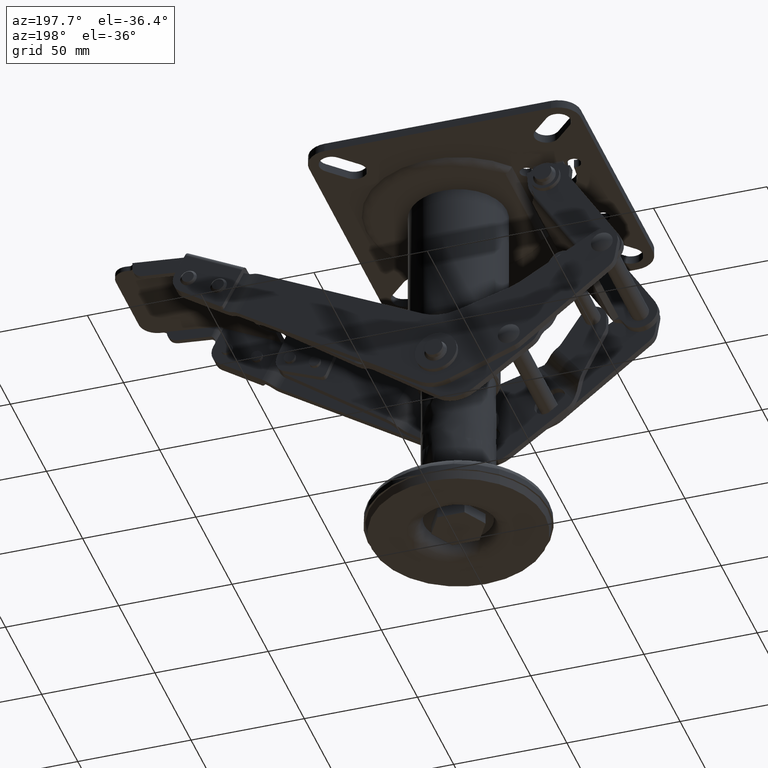
[diagram: clean part render]
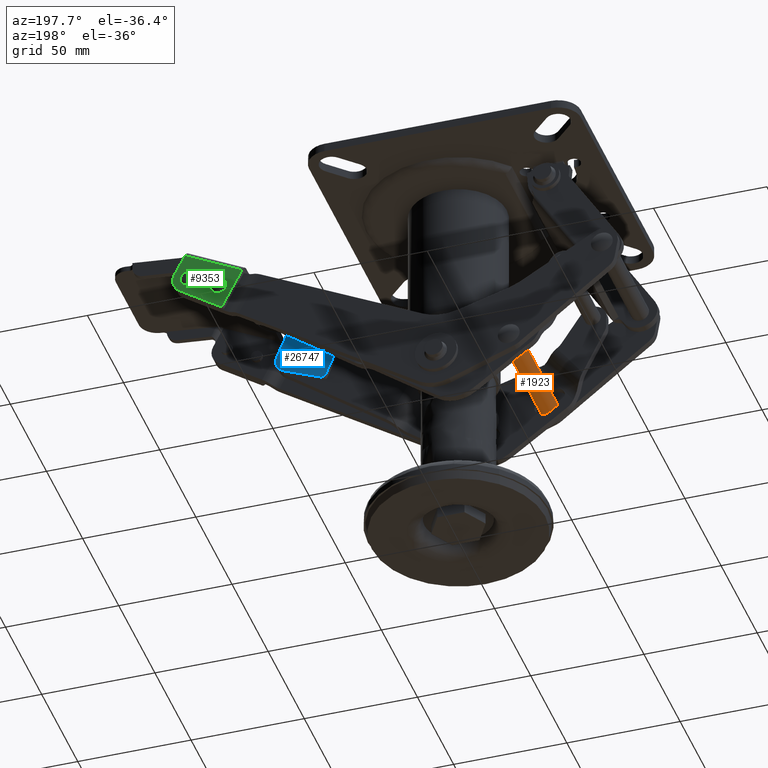
[diagram: same view with three faces highlighted in distinct colors, each labeled with its STEP entity id]
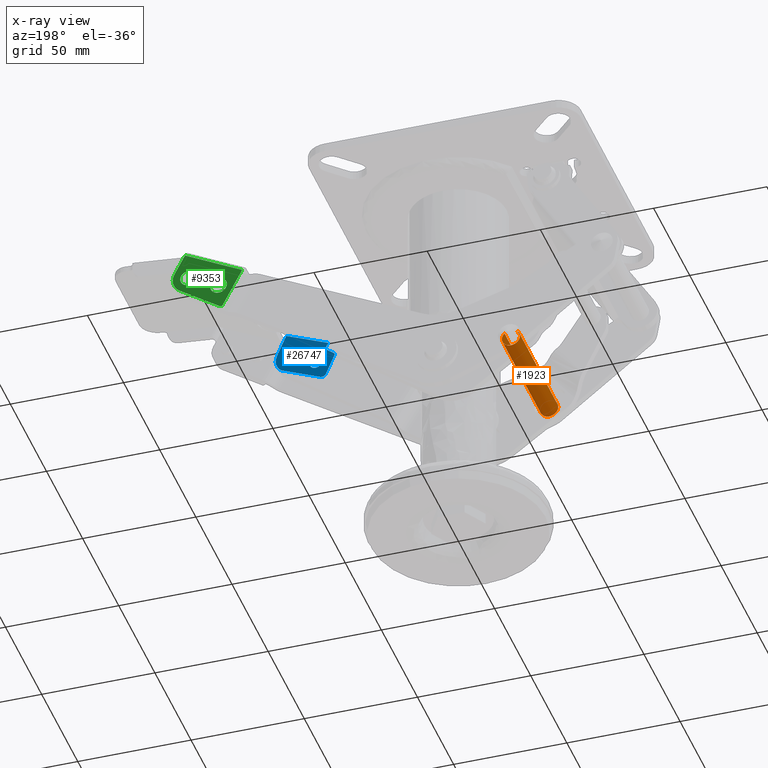
[diagram: x-ray of the same camera — body ghosted, the three highlighted faces saturated]
A machine part, auxiliary view with three faces highlighted in distinct colors.
The next image is the same camera in x-ray (body ghosted, the three faces saturated) — at least one of them is partly hidden behind the body in this view.
Their STEP definitions:

[orange] entity #1923 — the highlighted face is a freeform B-spline surface patch.
#1791=CARTESIAN_POINT('',(-28.766205372946612,-27.824999999999999,-91.208846770572947));
#1792=CARTESIAN_POINT('',(-25.962568315747539,-27.825000000000006,-94.061848567189315));
#1793=CARTESIAN_POINT('',(-28.815570112363929,-27.824999999999999,-96.865485624388398));
#1794=CARTESIAN_POINT('',(-31.668571908980315,-27.825000000000006,-99.669122681587467));
#1795=CARTESIAN_POINT('',(-34.472208966179387,-27.824999999999999,-96.816120884971085));
#1796=CARTESIAN_POINT('',(-37.275846023378456,-27.825000000000006,-93.963119088354702));
#1797=CARTESIAN_POINT('',(-34.422844226762066,-27.824999999999999,-91.159482031155633));
#1798=CARTESIAN_POINT('',(-28.766205372946612,27.858125000000001,-91.208846770572947));
#1799=CARTESIAN_POINT('',(-25.962568315747539,27.858125000000001,-94.061848567189315));
#1800=CARTESIAN_POINT('',(-28.815570112363929,27.858125000000001,-96.865485624388398));
#1801=CARTESIAN_POINT('',(-31.668571908980315,27.858125000000001,-99.669122681587467));
#1802=CARTESIAN_POINT('',(-34.472208966179387,27.858125000000001,-96.816120884971085));
#1803=CARTESIAN_POINT('',(-37.275846023378456,27.858125000000001,-93.963119088354702));
#1804=CARTESIAN_POINT('',(-34.422844226762066,27.858125000000001,-91.159482031155633));
#1812=(BOUNDED_SURFACE()B_SPLINE_SURFACE(2,1,((#1791,#1798),(#1792,#1799),(#1793,#1800),(#1794,#1801),(#1795,#1802),(#1796,#1803),(#1797,#1804)),.UNSPECIFIED.,.F.,.F.,.U.)B_SPLINE_SURFACE_WITH_KNOTS((3,2,2,3),(2,2),(0.0,6.627416997968759,13.254833995937521,19.882250993906279),(0.0,55.683125000000011),.UNSPECIFIED.)GEOMETRIC_REPRESENTATION_ITEM()RATIONAL_B_SPLINE_SURFACE(((1.0,1.0),(0.707106781186548,0.707106781186548),(1.0,1.0),(0.707106781186548,0.707106781186548),(1.0,1.0),(0.707106781186548,0.707106781186548),(1.0,1.0)))REPRESENTATION_ITEM('')SURFACE());
#1813=CARTESIAN_POINT('',(-27.619207169565279,26.500000000000000,-94.012479553874030));
#1814=VERTEX_POINT('',#1813);
#1815=CARTESIAN_POINT('',(-28.766204818361320,26.499999999996700,-91.208845810743327));
#1816=VERTEX_POINT('',#1815);
#1817=CARTESIAN_POINT('',(-27.619207169565279,26.500000000000000,-94.012479553874030));
#1818=CARTESIAN_POINT('',(-27.618553895807931,26.499999999999371,-93.462241561444216));
#1819=CARTESIAN_POINT('',(-27.836487233147491,26.499999999998071,-92.427321464509745));
#1820=CARTESIAN_POINT('',(-28.425641255838158,26.499999999997218,-91.554831510859870));
#1821=CARTESIAN_POINT('',(-28.766204818361320,26.499999999996700,-91.208845810743327));
#1822=B_SPLINE_CURVE_WITH_KNOTS('',3,(#1817,#1818,#1819,#1820,#1821),.UNSPECIFIED.,.F.,.U.,(4,1,4),(0.000000094677469,1.650442194562455,3.106758741136908),.UNSPECIFIED.);
#1823=EDGE_CURVE('',#1814,#1816,#1822,.T.);
#1824=ORIENTED_EDGE('',*,*,#1823,.T.);
#1825=CARTESIAN_POINT('',(-28.766206347659629,-26.500000000000000,-91.208847302878070));
#1826=VERTEX_POINT('',#1825);
#1827=CARTESIAN_POINT('',(-28.766206347659629,-26.500000000000000,-91.208847302878070));
#1828=CARTESIAN_POINT('',(-28.766204818361320,26.499999999996700,-91.208845810743327));
#1829=QUASI_UNIFORM_CURVE('',1,(#1827,#1828),.UNSPECIFIED.,.F.,.U.);
#1830=EDGE_CURVE('',#1826,#1816,#1829,.T.);
#1831=ORIENTED_EDGE('',*,*,#1830,.F.);
#1832=CARTESIAN_POINT('',(-27.619207169565762,-26.500000000000000,-94.012488101669973));
#1833=VERTEX_POINT('',#1832);
#1834=CARTESIAN_POINT('',(-28.766206347659629,-26.500000000000000,-91.208847302878070));
#1835=CARTESIAN_POINT('',(-28.425625737050911,-26.500000000000039,-91.554831019105961));
#1836=CARTESIAN_POINT('',(-27.836564631500028,-26.499999999999901,-92.427347838237296));
#1837=CARTESIAN_POINT('',(-27.618484889424590,-26.500000000000050,-93.462233009890824));
#1838=CARTESIAN_POINT('',(-27.619207169565762,-26.500000000000000,-94.012488101669973));
#1839=B_SPLINE_CURVE_WITH_KNOTS('',3,(#1834,#1835,#1836,#1837,#1838),.UNSPECIFIED.,.F.,.U.,(4,1,4),(0.000000094678687,1.456320263138075,3.106766467448271),.UNSPECIFIED.);
#1840=EDGE_CURVE('',#1826,#1833,#1839,.T.);
#1841=ORIENTED_EDGE('',*,*,#1840,.T.);
#1842=CARTESIAN_POINT('',(-31.619207169563001,-26.500000000000000,-98.012483827771533));
#1843=VERTEX_POINT('',#1842);
#1844=CARTESIAN_POINT('',(-27.619207169565762,-26.500000000000000,-94.012488101669973));
#1845=CARTESIAN_POINT('',(-27.619127664990220,-26.499999999999979,-94.372449042138854));
#1846=CARTESIAN_POINT('',(-27.730187478268260,-26.500000000000011,-95.190628588056583));
#1847=CARTESIAN_POINT('',(-28.255464844478361,-26.500000000000000,-96.301415322119880));
#1848=CARTESIAN_POINT('',(-29.145219870700970,-26.500000000000039,-97.235835978917606));
#1849=CARTESIAN_POINT('',(-30.277655943040681,-26.499999999999691,-97.859046522410111));
#1850=CARTESIAN_POINT('',(-31.161017466523909,-26.500000000000220,-98.012783762733349));
#1851=CARTESIAN_POINT('',(-31.619207169563001,-26.500000000000000,-98.012483827771533));
#1852=B_SPLINE_CURVE_WITH_KNOTS('',3,(#1844,#1845,#1846,#1847,#1848,#1849,#1850,#1851),.UNSPECIFIED.,.F.,.U.,(4,1,1,1,1,4),(0.000000418352396,1.079919872330230,2.454485553052767,3.632546585935487,4.908862546651442,6.283340568467245),.UNSPECIFIED.);
#1853=EDGE_CURVE('',#1833,#1843,#1852,.T.);
#1854=ORIENTED_EDGE('',*,*,#1853,.T.);
#1855=CARTESIAN_POINT('',(-35.619207169560227,-26.500000000000000,-94.012479553874030));
#1856=VERTEX_POINT('',#1855);
#1857=CARTESIAN_POINT('',(-31.619207169563001,-26.500000000000000,-98.012483827771533));
#1858=CARTESIAN_POINT('',(-31.979178706468279,-26.500000000000011,-98.012588500201659));
#1859=CARTESIAN_POINT('',(-32.731835482924510,-26.500000000000028,-97.910271437930447));
#1860=CARTESIAN_POINT('',(-33.729826027571363,-26.499999999999929,-97.467935078459561));
#1861=CARTESIAN_POINT('',(-34.545430605614882,-26.500000000000160,-96.798495545239462));
#1862=CARTESIAN_POINT('',(-35.134689577142893,-26.499999999999929,-96.004000543368093));
#1863=CARTESIAN_POINT('',(-35.525796499622011,-26.499999999999961,-95.059616326568701));
#1864=CARTESIAN_POINT('',(-35.619335533709489,-26.500000000000011,-94.372461469910206));
#1865=CARTESIAN_POINT('',(-35.619207169560227,-26.500000000000000,-94.012479553874030));
#1866=B_SPLINE_CURVE_WITH_KNOTS('',3,(#1857,#1858,#1859,#1860,#1861,#1862,#1863,#1864,#1865),.UNSPECIFIED.,.F.,.U.,(4,1,1,1,1,1,4),(0.000000412508236,1.079920695181849,2.258091253484733,3.239792636255949,4.221593183821381,5.203425104538209,6.283345386266682),.UNSPECIFIED.);
#1867=EDGE_CURVE('',#1843,#1856,#1866,.T.);
#1868=ORIENTED_EDGE('',*,*,#1867,.T.);
#1869=CARTESIAN_POINT('',(-34.422845183937532,-26.500000000000000,-91.159481473962387));
#1870=VERTEX_POINT('',#1869);
#1871=CARTESIAN_POINT('',(-35.619207169560227,-26.500000000000000,-94.012479553874030));
#1872=CARTESIAN_POINT('',(-35.619644264395092,-26.500000000000060,-93.516087100579796));
#1873=CARTESIAN_POINT('',(-35.419497067566347,-26.499999999999950,-92.457604319470619));
#1874=CARTESIAN_POINT('',(-34.824629748915427,-26.500000000000039,-91.553313078742633));
#1875=CARTESIAN_POINT('',(-34.422845183937532,-26.500000000000000,-91.159481473962387));
#1876=B_SPLINE_CURVE_WITH_KNOTS('',3,(#1871,#1872,#1873,#1874,#1875),.UNSPECIFIED.,.F.,.U.,(4,1,4),(0.000000105719107,1.489045353038137,3.176576587440371),.UNSPECIFIED.);
#1877=EDGE_CURVE('',#1856,#1870,#1876,.T.);
#1878=ORIENTED_EDGE('',*,*,#1877,.T.);
#1879=CARTESIAN_POINT('',(-34.422843697052073,26.500000000003329,-91.159483008418476));
#1880=VERTEX_POINT('',#1879);
#1881=CARTESIAN_POINT('',(-34.422845183937532,-26.500000000000000,-91.159481473962387));
#1882=CARTESIAN_POINT('',(-34.422843697052073,26.500000000003329,-91.159483008418476));
#1883=QUASI_UNIFORM_CURVE('',1,(#1881,#1882),.UNSPECIFIED.,.F.,.U.);
#1884=EDGE_CURVE('',#1870,#1880,#1883,.T.);
#1885=ORIENTED_EDGE('',*,*,#1884,.T.);
#1886=CARTESIAN_POINT('',(-35.619207169560717,26.500000000000000,-94.012488101669959));
#1887=VERTEX_POINT('',#1886);
#1888=CARTESIAN_POINT('',(-34.422843697052073,26.500000000003329,-91.159483008418476));
#1889=CARTESIAN_POINT('',(-34.777205283325827,26.500000000002931,-91.507096668136853));
#1890=CARTESIAN_POINT('',(-35.391881014164959,26.500000000001929,-92.391755639416687));
#1891=CARTESIAN_POINT('',(-35.619918691597057,26.500000000000639,-93.449874733975520));
#1892=CARTESIAN_POINT('',(-35.619207169560717,26.500000000000000,-94.012488101669959));
#1893=B_SPLINE_CURVE_WITH_KNOTS('',3,(#1888,#1889,#1890,#1891,#1892),.UNSPECIFIED.,.F.,.U.,(4,1,4),(0.000000105725228,1.489048955607485,3.176584272505725),.UNSPECIFIED.);
#1894=EDGE_CURVE('',#1880,#1887,#1893,.T.);
#1895=ORIENTED_EDGE('',*,*,#1894,.T.);
#1896=CARTESIAN_POINT('',(-31.619207169563001,26.500000000000000,-98.012483827772016));
#1897=VERTEX_POINT('',#1896);
#1898=CARTESIAN_POINT('',(-35.619207169560717,26.500000000000000,-94.012488101669959));
#1899=CARTESIAN_POINT('',(-35.619673571145682,26.500000000000021,-94.536168920295694));
#1900=CARTESIAN_POINT('',(-35.456246966689463,26.499999999999961,-95.353853043218152));
#1901=CARTESIAN_POINT('',(-34.836944997107743,26.500000000000000,-96.478902512835731));
#1902=CARTESIAN_POINT('',(-34.085673894950972,26.500000000000028,-97.230302335226554));
#1903=CARTESIAN_POINT('',(-32.960534901160962,26.499999999999929,-97.849387732409468));
#1904=CARTESIAN_POINT('',(-32.142917724841219,26.500000000000089,-98.013089443900512));
#1905=CARTESIAN_POINT('',(-31.619207169563001,26.500000000000000,-98.012483827772016));
#1906=B_SPLINE_CURVE_WITH_KNOTS('',3,(#1898,#1899,#1900,#1901,#1902,#1903,#1904,#1905),.UNSPECIFIED.,.F.,.U.,(4,1,1,1,1,4),(0.000000418345246,1.570835456222282,2.454485553047249,3.828855432455002,4.712505528723318,6.283340568468194),.UNSPECIFIED.);
#1907=EDGE_CURVE('',#1887,#1897,#1906,.T.);
#1908=ORIENTED_EDGE('',*,*,#1907,.T.);
#1909=CARTESIAN_POINT('',(-31.619207169563001,26.500000000000000,-98.012483827772016));
#1910=CARTESIAN_POINT('',(-31.095528051398450,26.500000000000011,-98.013021169009761));
#1911=CARTESIAN_POINT('',(-30.212374321204660,26.499999999999989,-97.836434112235011));
#1912=CARTESIAN_POINT('',(-29.213849034547621,26.500000000000039,-97.254269054642791));
#1913=CARTESIAN_POINT('',(-28.570891145977662,26.499999999999989,-96.642027367237404));
#1914=CARTESIAN_POINT('',(-28.040546564709189,26.500000000000000,-95.889327739750286));
#1915=CARTESIAN_POINT('',(-27.695342833752839,26.500000000000021,-94.994261006047239));
#1916=CARTESIAN_POINT('',(-27.619176434749338,26.499999999999950,-94.306993299644361));
#1917=CARTESIAN_POINT('',(-27.619207169565279,26.500000000000000,-94.012479553874030));
#1918=B_SPLINE_CURVE_WITH_KNOTS('',3,(#1909,#1910,#1911,#1912,#1913,#1914,#1915,#1916,#1917),.UNSPECIFIED.,.F.,.U.,(4,1,1,1,1,1,4),(0.000000412501004,1.570836655595453,2.650796431459031,3.436131191662016,4.221593183820276,5.399763741403953,6.283345386267448),.UNSPECIFIED.);
#1919=EDGE_CURVE('',#1897,#1814,#1918,.T.);
#1920=ORIENTED_EDGE('',*,*,#1919,.T.);
#1921=EDGE_LOOP('',(#1824,#1831,#1841,#1854,#1868,#1878,#1885,#1895,#1908,#1920));
#1922=FACE_OUTER_BOUND('',#1921,.T.);
#1923=ADVANCED_FACE('',(#1922),#1812,.T.);

[blue] entity #26747 — the highlighted face is a freeform B-spline surface patch.
#22961=CARTESIAN_POINT('',(90.808191698337822,-17.074999999999999,-34.407570332988143));
#22962=VERTEX_POINT('',#22961);
#22968=CARTESIAN_POINT('',(92.529076881266207,-17.074999999999999,-33.721005581530846));
#22969=VERTEX_POINT('',#22968);
#22970=CARTESIAN_POINT('',(92.529076881266207,-17.074999999999999,-33.721005581530846));
#22971=CARTESIAN_POINT('',(92.192924058765243,-17.075000000000010,-33.720652489476471));
#22972=CARTESIAN_POINT('',(91.560582682011272,-17.074999999999989,-33.850639583666897));
#22973=CARTESIAN_POINT('',(91.023190630688163,-17.074999999999999,-34.203239864858453));
#22974=CARTESIAN_POINT('',(90.808191698337822,-17.074999999999999,-34.407570332988143));
#22975=B_SPLINE_CURVE_WITH_KNOTS('',3,(#22970,#22971,#22972,#22973,#22974),.UNSPECIFIED.,.F.,.U.,(4,1,4),(0.000000118063811,1.008324444131709,1.898089109779029),.UNSPECIFIED.);
#22976=EDGE_CURVE('',#22969,#22962,#22975,.T.);
#22978=CARTESIAN_POINT('',(95.029076881260295,-17.074999999999999,-36.221000144864533));
#22979=VERTEX_POINT('',#22978);
#22980=CARTESIAN_POINT('',(95.029076881260295,-17.074999999999999,-36.221000144864533));
#22981=CARTESIAN_POINT('',(95.029732566927208,-17.074999999999989,-35.832282468399072));
#22982=CARTESIAN_POINT('',(94.868442915789643,-17.075000000000038,-35.157958437757628));
#22983=CARTESIAN_POINT('',(94.349024414892398,-17.074999999999960,-34.457830489202777));
#22984=CARTESIAN_POINT('',(93.824834661534979,-17.075000000000060,-34.059200780758559));
#22985=CARTESIAN_POINT('',(93.244862249558054,-17.075000000000081,-33.793495458863369));
#22986=CARTESIAN_POINT('',(92.794981042916547,-17.074999999999761,-33.720863264498107));
#22987=CARTESIAN_POINT('',(92.529076881266207,-17.074999999999999,-33.721005581530846));
#22988=B_SPLINE_CURVE_WITH_KNOTS('',3,(#22980,#22981,#22982,#22983,#22984,#22985,#22986,#22987),.UNSPECIFIED.,.F.,.U.,(4,1,1,1,1,4),(0.000000547506545,1.165862441027591,2.024823918252311,2.577121338168464,3.129405312654715,3.927086296641714),.UNSPECIFIED.);
#22989=EDGE_CURVE('',#22979,#22969,#22988,.T.);
#22991=CARTESIAN_POINT('',(92.529076881266207,-17.074999999999999,-38.721005581530846));
#22992=VERTEX_POINT('',#22991);
#22993=CARTESIAN_POINT('',(92.529076881266207,-17.074999999999999,-38.721005581530846));
#22994=CARTESIAN_POINT('',(92.876851369055800,-17.074999999999989,-38.721462663420510));
#22995=CARTESIAN_POINT('',(93.469639567116786,-17.074999999999999,-38.595168971709533));
#22996=CARTESIAN_POINT('',(94.115869357619744,-17.074999999999982,-38.185811908951429));
#22997=CARTESIAN_POINT('',(94.569390192391850,-17.075000000000038,-37.709489493403673));
#22998=CARTESIAN_POINT('',(94.926128952335972,-17.074999999999910,-37.079908680830989));
#22999=CARTESIAN_POINT('',(95.029327315463718,-17.075000000000170,-36.527819454481872));
#23000=CARTESIAN_POINT('',(95.029076881260295,-17.074999999999999,-36.221000144864533));
#23001=B_SPLINE_CURVE_WITH_KNOTS('',3,(#22993,#22994,#22995,#22996,#22997,#22998,#22999,#23000),.UNSPECIFIED.,.F.,.U.,(4,1,1,1,1,4),(0.000000540087488,1.043139432707628,1.779489830702981,2.270314226632276,3.006685379967978,3.927092425184804),.UNSPECIFIED.);
#23002=EDGE_CURVE('',#22992,#22979,#23001,.T.);
#23004=CARTESIAN_POINT('',(90.620186969218111,-17.074999999999999,-37.835361801571302));
#23005=VERTEX_POINT('',#23004);
#23006=CARTESIAN_POINT('',(90.620186969218111,-17.074999999999999,-37.835361801571302));
#23007=CARTESIAN_POINT('',(90.780817553268392,-17.074999999999999,-38.025484414928563));
#23008=CARTESIAN_POINT('',(91.107893237893421,-17.075000000000021,-38.311763682157412));
#23009=CARTESIAN_POINT('',(91.759967552624232,-17.074999999999960,-38.636147929609827));
#23010=CARTESIAN_POINT('',(92.234913201803153,-17.075000000000038,-38.721223397864179));
#23011=CARTESIAN_POINT('',(92.529076881266207,-17.074999999999999,-38.721005581530846));
#23012=B_SPLINE_CURVE_WITH_KNOTS('',3,(#23006,#23007,#23008,#23009,#23010,#23011),.UNSPECIFIED.,.F.,.U.,(4,1,1,4),(0.000000181234518,0.746668956718978,1.289659142569406,2.172070991125586),.UNSPECIFIED.);
#23013=EDGE_CURVE('',#23005,#22992,#23012,.T.);
#23048=CARTESIAN_POINT('',(90.029076881272090,-17.074999999999999,-36.221011018197160));
#23049=VERTEX_POINT('',#23048);
#23050=CARTESIAN_POINT('',(90.029076881272090,-17.074999999999999,-36.221011018197160));
#23051=CARTESIAN_POINT('',(90.028466416270817,-17.075000000000010,-36.586757695082191));
#23052=CARTESIAN_POINT('',(90.159887739956190,-17.074999999999982,-37.171170813855127));
#23053=CARTESIAN_POINT('',(90.478488223417344,-17.075000000000010,-37.667889540069289));
#23054=CARTESIAN_POINT('',(90.620186969218111,-17.074999999999999,-37.835361801571302));
#23055=B_SPLINE_CURVE_WITH_KNOTS('',3,(#23050,#23051,#23052,#23053,#23054),.UNSPECIFIED.,.F.,.U.,(4,1,4),(0.000000100657828,1.096871113609448,1.755017316410391),.UNSPECIFIED.);
#23056=EDGE_CURVE('',#23049,#23005,#23055,.T.);
#23058=CARTESIAN_POINT('',(90.808191698337822,-17.074999999999999,-34.407570332988143));
#23059=CARTESIAN_POINT('',(90.547188233274952,-17.075000000000010,-34.654585253080519));
#23060=CARTESIAN_POINT('',(90.159520808124370,-17.074999999999971,-35.227858105586989));
#23061=CARTESIAN_POINT('',(90.028778239098543,-17.075000000000092,-35.903934261335237));
#23062=CARTESIAN_POINT('',(90.029076881272090,-17.074999999999999,-36.221011018197160));
#23063=B_SPLINE_CURVE_WITH_KNOTS('',3,(#23058,#23059,#23060,#23061,#23062),.UNSPECIFIED.,.F.,.U.,(4,1,4),(0.000000164773196,1.077865700944058,2.029004949508118),.UNSPECIFIED.);
#23064=EDGE_CURVE('',#22962,#23049,#23063,.T.);
#23348=CARTESIAN_POINT('',(79.703649451615121,-17.074999999999999,-38.956255697118713));
#23349=VERTEX_POINT('',#23348);
#23355=CARTESIAN_POINT('',(81.424534634543491,-17.074999999999999,-38.269690945661402));
#23356=VERTEX_POINT('',#23355);
#23357=CARTESIAN_POINT('',(81.424534634543491,-17.074999999999999,-38.269690945661402));
#23358=CARTESIAN_POINT('',(81.127921689471648,-17.075000000000021,-38.269452116295433));
#23359=CARTESIAN_POINT('',(80.495439089383439,-17.074999999999989,-38.383705195647849));
#23360=CARTESIAN_POINT('',(79.947204887731630,-17.075000000000021,-38.724538122134277));
#23361=CARTESIAN_POINT('',(79.703649451615121,-17.074999999999999,-38.956255697118713));
#23362=B_SPLINE_CURVE_WITH_KNOTS('',3,(#23357,#23358,#23359,#23360,#23361),.UNSPECIFIED.,.F.,.U.,(4,1,4),(0.000000118063662,0.889764784027688,1.898089109779043),.UNSPECIFIED.);
#23363=EDGE_CURVE('',#23356,#23349,#23362,.T.);
#23365=CARTESIAN_POINT('',(83.924534634537579,-17.074999999999999,-40.769685508995082));
#23366=VERTEX_POINT('',#23365);
#23367=CARTESIAN_POINT('',(83.924534634537579,-17.074999999999999,-40.769685508995082));
#23368=CARTESIAN_POINT('',(83.925000781352963,-17.074999999999989,-40.421899214147032));
#23369=CARTESIAN_POINT('',(83.798665878550338,-17.075000000000010,-39.829168473813482));
#23370=CARTESIAN_POINT('',(83.334108045228163,-17.075000000000038,-39.095457115022967));
#23371=CARTESIAN_POINT('',(82.795174590249658,-17.074999999999950,-38.642060306479181));
#23372=CARTESIAN_POINT('',(82.140316454433687,-17.075000000000170,-38.342182599635770));
#23373=CARTESIAN_POINT('',(81.690436066942539,-17.074999999999680,-38.269553683706349));
#23374=CARTESIAN_POINT('',(81.424534634543491,-17.074999999999999,-38.269690945661402));
#23375=B_SPLINE_CURVE_WITH_KNOTS('',3,(#23367,#23368,#23369,#23370,#23371,#23372,#23373,#23374),.UNSPECIFIED.,.F.,.U.,(4,1,1,1,1,4),(0.000000547509789,1.043137811665683,1.779487070288638,2.577121338169154,3.129405312655048,3.927086296641721),.UNSPECIFIED.);
#23376=EDGE_CURVE('',#23366,#23356,#23375,.T.);
#23378=CARTESIAN_POINT('',(81.424534634543491,-17.074999999999999,-43.269690945661402));
#23379=VERTEX_POINT('',#23378);
#23380=CARTESIAN_POINT('',(81.424534634543491,-17.074999999999999,-43.269690945661402));
#23381=CARTESIAN_POINT('',(81.813275177046123,-17.074999999999982,-43.270354882129602));
#23382=CARTESIAN_POINT('',(82.446695766394470,-17.075000000000092,-43.118781368579548));
#23383=CARTESIAN_POINT('',(83.122765127944191,-17.074999999999889,-42.642324219568152));
#23384=CARTESIAN_POINT('',(83.520188967508844,-17.075000000000060,-42.169928942517522));
#23385=CARTESIAN_POINT('',(83.832972307868999,-17.074999999999960,-41.567183955634569));
#23386=CARTESIAN_POINT('',(83.924822125459201,-17.075000000000021,-41.076527390790979));
#23387=CARTESIAN_POINT('',(83.924534634537579,-17.074999999999999,-40.769685508995082));
#23388=B_SPLINE_CURVE_WITH_KNOTS('',3,(#23380,#23381,#23382,#23383,#23384,#23385,#23386,#23387),.UNSPECIFIED.,.F.,.U.,(4,1,1,1,1,4),(0.000000540096302,1.165864255411844,1.902265884885908,2.454424079270073,3.006685379969956,3.927092425184628),.UNSPECIFIED.);
#23389=EDGE_CURVE('',#23379,#23366,#23388,.T.);
#23391=CARTESIAN_POINT('',(79.515644722495395,-17.074999999999999,-42.384047165701837));
#23392=VERTEX_POINT('',#23391);
#23393=CARTESIAN_POINT('',(79.515644722495395,-17.074999999999999,-42.384047165701837));
#23394=CARTESIAN_POINT('',(79.705431200162153,-17.074999999999999,-42.608802084961653));
#23395=CARTESIAN_POINT('',(80.077089719808640,-17.074999999999999,-42.916490185630948));
#23396=CARTESIAN_POINT('',(80.745835564262165,-17.074999999999999,-43.204964172909143));
#23397=CARTESIAN_POINT('',(81.175643103275078,-17.075000000000021,-43.269787218865993));
#23398=CARTESIAN_POINT('',(81.424534634543491,-17.074999999999999,-43.269690945661402));
#23399=B_SPLINE_CURVE_WITH_KNOTS('',3,(#23393,#23394,#23395,#23396,#23397,#23398),.UNSPECIFIED.,.F.,.U.,(4,1,1,4),(0.000000181234667,0.882412030100125,1.425402216062774,2.172070991125592),.UNSPECIFIED.);
#23400=EDGE_CURVE('',#23392,#23379,#23399,.T.);
#23435=CARTESIAN_POINT('',(78.924534634549403,-17.074999999999999,-40.769696382327709));
#23436=VERTEX_POINT('',#23435);
#23437=CARTESIAN_POINT('',(78.924534634549403,-17.074999999999999,-40.769696382327709));
#23438=CARTESIAN_POINT('',(78.924155438127698,-17.074999999999999,-41.098818848993702));
#23439=CARTESIAN_POINT('',(79.041866138804920,-17.075000000000021,-41.683462777727598));
#23440=CARTESIAN_POINT('',(79.350275183749531,-17.074999999999999,-42.188694222418484));
#23441=CARTESIAN_POINT('',(79.515644722495395,-17.074999999999999,-42.384047165701837));
#23442=B_SPLINE_CURVE_WITH_KNOTS('',3,(#23437,#23438,#23439,#23440,#23441),.UNSPECIFIED.,.F.,.U.,(4,1,4),(0.000000100659238,0.987184254108545,1.755017316410373),.UNSPECIFIED.);
#23443=EDGE_CURVE('',#23436,#23392,#23442,.T.);
#23445=CARTESIAN_POINT('',(79.703649451615121,-17.074999999999999,-38.956255697118713));
#23446=CARTESIAN_POINT('',(79.488886582106460,-17.074999999999999,-39.159819665646069));
#23447=CARTESIAN_POINT('',(79.082076501002334,-17.075000000000031,-39.713494670967833));
#23448=CARTESIAN_POINT('',(78.923915066536011,-17.074999999999999,-40.389162225597289));
#23449=CARTESIAN_POINT('',(78.924534634549403,-17.074999999999999,-40.769696382327709));
#23450=B_SPLINE_CURVE_WITH_KNOTS('',3,(#23445,#23446,#23447,#23448,#23449),.UNSPECIFIED.,.F.,.U.,(4,1,4),(0.000000164770793,0.887718262016958,2.029004949508138),.UNSPECIFIED.);
#23451=EDGE_CURVE('',#23349,#23436,#23450,.T.);
#23695=CARTESIAN_POINT('',(75.962954382950798,-17.074999999999999,-35.326228987866251));
#23696=VERTEX_POINT('',#23695);
#23697=CARTESIAN_POINT('',(76.609243049626897,-17.074999999999999,-32.971472534990603));
#23698=VERTEX_POINT('',#23697);
#23699=CARTESIAN_POINT('',(75.962954382950798,-17.074999999999999,-35.326228987866251));
#23700=CARTESIAN_POINT('',(76.247720516490276,-17.075000000000010,-35.112677364771983));
#23701=CARTESIAN_POINT('',(76.609990130004959,-17.074999999999989,-34.640793345958947));
#23702=CARTESIAN_POINT('',(76.809509746416580,-17.074999999999960,-33.776019279666173));
#23703=CARTESIAN_POINT('',(76.723800628455322,-17.075000000000092,-33.249876516813153));
#23704=CARTESIAN_POINT('',(76.609243049626897,-17.074999999999999,-32.971472534990603));
#23705=B_SPLINE_CURVE_WITH_KNOTS('',3,(#23699,#23700,#23701,#23702,#23703,#23704),.UNSPECIFIED.,.F.,.U.,(4,1,1,4),(0.000000264318612,1.067143648756178,1.723775436034048,2.626745113032931),.UNSPECIFIED.);
#23706=EDGE_CURVE('',#23696,#23698,#23705,.T.);
#26486=CARTESIAN_POINT('',(94.487977823076690,-17.074999999999999,-23.855645066696049));
#26487=VERTEX_POINT('',#26486);
#26493=CARTESIAN_POINT('',(75.980594611312242,-17.074999999999999,-31.436800199005930));
#26494=VERTEX_POINT('',#26493);
#26495=CARTESIAN_POINT('',(75.980594611312242,-17.074999999999999,-31.436800199005930));
#26496=CARTESIAN_POINT('',(94.487977823076690,-17.074999999999999,-23.855645066696049));
#26497=QUASI_UNIFORM_CURVE('',1,(#26495,#26496),.UNSPECIFIED.,.F.,.U.);
#26498=EDGE_CURVE('',#26494,#26487,#26497,.T.);
#26549=CARTESIAN_POINT('',(79.313250922320904,-17.074999999999999,-48.449332893897598));
#26550=VERTEX_POINT('',#26549);
#26551=CARTESIAN_POINT('',(76.704389321788895,-17.074999999999999,-47.356702512996002));
#26552=VERTEX_POINT('',#26551);
#26553=CARTESIAN_POINT('',(79.313250922320904,-17.074999999999999,-48.449332893897598));
#26554=CARTESIAN_POINT('',(79.116459742717197,-17.074999999999999,-48.530015126261112));
#26555=CARTESIAN_POINT('',(78.632206810029615,-17.074999999999999,-48.643130958358661));
#26556=CARTESIAN_POINT('',(77.953371274032705,-17.074999999999989,-48.548267053239400));
#26557=CARTESIAN_POINT('',(77.397581433248178,-17.075000000000038,-48.256770814779870));
#26558=CARTESIAN_POINT('',(76.983758045983649,-17.074999999999900,-47.878749381050461));
#26559=CARTESIAN_POINT('',(76.784907257549435,-17.075000000000092,-47.553595440338242));
#26560=CARTESIAN_POINT('',(76.704389321788895,-17.074999999999999,-47.356702512996002));
#26561=B_SPLINE_CURVE_WITH_KNOTS('',3,(#26553,#26554,#26555,#26556,#26557,#26558,#26559,#26560),.UNSPECIFIED.,.F.,.U.,(4,1,1,1,1,4),(0.000000559984340,0.638137288429887,1.472698475862378,2.012618570525781,2.503534760331381,3.141671488777148),.UNSPECIFIED.);
#26562=EDGE_CURVE('',#26550,#26552,#26561,.T.);
#26606=CARTESIAN_POINT('',(73.056834071846410,-17.074999999999999,-38.452126261895003));
#26607=VERTEX_POINT('',#26606);
#26608=CARTESIAN_POINT('',(73.379977397160900,-17.074999999999999,-37.274745574615402));
#26609=VERTEX_POINT('',#26608);
#26610=CARTESIAN_POINT('',(73.056834071846410,-17.074999999999999,-38.452126261895003));
#26611=CARTESIAN_POINT('',(72.988992302306698,-17.075000000000021,-38.287635454280753));
#26612=CARTESIAN_POINT('',(72.951770066780810,-17.074999999999960,-37.978179440542370));
#26613=CARTESIAN_POINT('',(73.095996988683950,-17.075000000000070,-37.556840625822971));
#26614=CARTESIAN_POINT('',(73.270657566122537,-17.074999999999928,-37.357029146747813));
#26615=CARTESIAN_POINT('',(73.379977397160900,-17.074999999999999,-37.274745574615402));
#26616=B_SPLINE_CURVE_WITH_KNOTS('',3,(#26610,#26611,#26612,#26613,#26614,#26615),.UNSPECIFIED.,.F.,.U.,(4,1,1,4),(0.000000563185980,0.533571916660774,0.902938231927132,1.313375216497672),.UNSPECIFIED.);
#26617=EDGE_CURVE('',#26607,#26609,#26616,.T.);
#26679=CARTESIAN_POINT('',(71.681220191802808,-17.074999999999999,-49.833964322595733));
#26680=CARTESIAN_POINT('',(100.330010754066810,-17.074999999999999,-49.833964322595733));
#26681=CARTESIAN_POINT('',(71.681220191802808,-17.074999999999999,-22.619759838178240));
#26682=CARTESIAN_POINT('',(100.330010754066810,-17.074999999999999,-22.619759838178240));
#26683=B_SPLINE_SURFACE_WITH_KNOTS('',1,1,((#26679,#26681),(#26680,#26682)),.UNSPECIFIED.,.F.,.F.,.U.,(2,2),(2,2),(0.0,28.648790562263969),(0.0,27.214204484417479),.UNSPECIFIED.);
#26684=CARTESIAN_POINT('',(75.980594611312242,-17.074999999999999,-31.436800199005930));
#26685=CARTESIAN_POINT('',(76.609243049626897,-17.074999999999999,-32.971472534990603));
#26686=QUASI_UNIFORM_CURVE('',1,(#26684,#26685),.UNSPECIFIED.,.F.,.U.);
#26687=EDGE_CURVE('',#26494,#23698,#26686,.T.);
#26688=ORIENTED_EDGE('',*,*,#26687,.F.);
#26689=ORIENTED_EDGE('',*,*,#26498,.T.);
#26690=CARTESIAN_POINT('',(98.530273713799303,-17.074999999999999,-33.723879958825052));
#26691=VERTEX_POINT('',#26690);
#26692=CARTESIAN_POINT('',(98.530273713799303,-17.074999999999999,-33.723879958825052));
#26693=CARTESIAN_POINT('',(94.487977823076690,-17.074999999999999,-23.855645066696049));
#26694=QUASI_UNIFORM_CURVE('',1,(#26692,#26693),.UNSPECIFIED.,.F.,.U.);
#26695=EDGE_CURVE('',#26691,#26487,#26694,.T.);
#26696=ORIENTED_EDGE('',*,*,#26695,.F.);
#26697=CARTESIAN_POINT('',(96.377290848255996,-17.074999999999999,-41.459440656254401));
#26698=VERTEX_POINT('',#26697);
#26699=CARTESIAN_POINT('',(96.377290848255996,-17.074999999999999,-41.459440656254401));
#26700=CARTESIAN_POINT('',(96.849655000784509,-17.074999999999999,-41.112617414903760));
#26701=CARTESIAN_POINT('',(97.732377328645427,-17.074999999999999,-40.258485246148460));
#26702=CARTESIAN_POINT('',(98.526265266691851,-17.075000000000049,-38.875728915116341));
#26703=CARTESIAN_POINT('',(98.916960498382295,-17.074999999999928,-37.576105908868151));
#26704=CARTESIAN_POINT('',(99.064632914818702,-17.075000000000031,-36.409344309695037));
#26705=CARTESIAN_POINT('',(98.983942074013243,-17.075000000000060,-35.097456249540592));
#26706=CARTESIAN_POINT('',(98.720848196907852,-17.074999999999971,-34.181649812631321));
#26707=CARTESIAN_POINT('',(98.530273713799303,-17.074999999999999,-33.723879958825052));
#26708=B_SPLINE_CURVE_WITH_KNOTS('',3,(#26699,#26700,#26701,#26702,#26703,#26704,#26705,#26706,#26707),.UNSPECIFIED.,.F.,.U.,(4,1,1,1,1,1,4),(0.000000205871785,1.758065295058938,3.651411250720962,4.733189110452541,5.815119020448874,7.167521742968448,8.655093773655507),.UNSPECIFIED.);
#26709=EDGE_CURVE('',#26698,#26691,#26708,.T.);
#26710=ORIENTED_EDGE('',*,*,#26709,.F.);
#26711=CARTESIAN_POINT('',(79.313250922320904,-17.074999999999999,-48.449332893897598));
#26712=CARTESIAN_POINT('',(96.377290848255996,-17.074999999999999,-41.459440656254401));
#26713=QUASI_UNIFORM_CURVE('',1,(#26711,#26712),.UNSPECIFIED.,.F.,.U.);
#26714=EDGE_CURVE('',#26550,#26698,#26713,.T.);
#26715=ORIENTED_EDGE('',*,*,#26714,.F.);
#26716=ORIENTED_EDGE('',*,*,#26562,.T.);
#26717=CARTESIAN_POINT('',(73.056834071846410,-17.074999999999999,-38.452126261895003));
#26718=CARTESIAN_POINT('',(76.704389321788895,-17.074999999999999,-47.356702512996002));
#26719=QUASI_UNIFORM_CURVE('',1,(#26717,#26718),.UNSPECIFIED.,.F.,.U.);
#26720=EDGE_CURVE('',#26607,#26552,#26719,.T.);
#26721=ORIENTED_EDGE('',*,*,#26720,.F.);
#26722=ORIENTED_EDGE('',*,*,#26617,.T.);
#26723=CARTESIAN_POINT('',(75.962954382950798,-17.074999999999999,-35.326228987866251));
#26724=CARTESIAN_POINT('',(73.379977397160900,-17.074999999999999,-37.274745574615402));
#26725=QUASI_UNIFORM_CURVE('',1,(#26723,#26724),.UNSPECIFIED.,.F.,.U.);
#26726=EDGE_CURVE('',#23696,#26609,#26725,.T.);
#26727=ORIENTED_EDGE('',*,*,#26726,.F.);
#26728=ORIENTED_EDGE('',*,*,#23706,.T.);
#26729=EDGE_LOOP('',(#26688,#26689,#26696,#26710,#26715,#26716,#26721,#26722,#26727,#26728));
#26730=FACE_OUTER_BOUND('',#26729,.T.);
#26731=ORIENTED_EDGE('',*,*,#23389,.T.);
#26732=ORIENTED_EDGE('',*,*,#23376,.T.);
#26733=ORIENTED_EDGE('',*,*,#23363,.T.);
#26734=ORIENTED_EDGE('',*,*,#23451,.T.);
#26735=ORIENTED_EDGE('',*,*,#23443,.T.);
#26736=ORIENTED_EDGE('',*,*,#23400,.T.);
#26737=EDGE_LOOP('',(#26731,#26732,#26733,#26734,#26735,#26736));
#26738=FACE_BOUND('',#26737,.T.);
#26739=ORIENTED_EDGE('',*,*,#23002,.T.);
#26740=ORIENTED_EDGE('',*,*,#22989,.T.);
#26741=ORIENTED_EDGE('',*,*,#22976,.T.);
#26742=ORIENTED_EDGE('',*,*,#23064,.T.);
#26743=ORIENTED_EDGE('',*,*,#23056,.T.);
#26744=ORIENTED_EDGE('',*,*,#23013,.T.);
#26745=EDGE_LOOP('',(#26739,#26740,#26741,#26742,#26743,#26744));
#26746=FACE_BOUND('',#26745,.T.);
#26747=ADVANCED_FACE('',(#26730,#26738,#26746),#26683,.F.);

[green] entity #9353 — the highlighted face is a freeform B-spline surface patch.
#3385=CARTESIAN_POINT('',(107.284051412301390,29.500000544621241,-30.645032924379240));
#3386=VERTEX_POINT('',#3385);
#3392=CARTESIAN_POINT('',(109.796544488910000,29.500000000000000,-29.642648193407521));
#3393=VERTEX_POINT('',#3392);
#3394=CARTESIAN_POINT('',(109.796544488910000,29.500000000000000,-29.642648193407521));
#3395=CARTESIAN_POINT('',(109.247891955453400,29.500000118928860,-29.641709536690641));
#3396=CARTESIAN_POINT('',(108.325158669430000,29.500000318945201,-29.855088265574508));
#3397=CARTESIAN_POINT('',(107.556150552771400,29.500000485639731,-30.386601644467071));
#3398=CARTESIAN_POINT('',(107.284051412301390,29.500000544621241,-30.645032924379240));
#3399=B_SPLINE_CURVE_WITH_KNOTS('',3,(#3394,#3395,#3396,#3397,#3398),.UNSPECIFIED.,.F.,.U.,(4,1,4),(0.000000103875766,1.645386650834379,2.771210880456231),.UNSPECIFIED.);
#3400=EDGE_CURVE('',#3393,#3386,#3399,.T.);
#3402=CARTESIAN_POINT('',(113.446544488907310,29.500000000000000,-33.292643830459440));
#3403=VERTEX_POINT('',#3402);
#3404=CARTESIAN_POINT('',(113.446544488907310,29.500000000000000,-33.292643830459440));
#3405=CARTESIAN_POINT('',(113.446957650732600,29.499999999999979,-32.844648941262228));
#3406=CARTESIAN_POINT('',(113.312844504131800,29.500000000000011,-32.128314215017227));
#3407=CARTESIAN_POINT('',(112.828567321720800,29.500000000000011,-31.194896144919930));
#3408=CARTESIAN_POINT('',(112.189846304453200,29.499999999999989,-30.472471905190549));
#3409=CARTESIAN_POINT('',(111.169760296247700,29.499999999999961,-29.826308030817380));
#3410=CARTESIAN_POINT('',(110.304288429282200,29.500000000000099,-29.642042144734258));
#3411=CARTESIAN_POINT('',(109.796544488910000,29.500000000000000,-29.642648193407521));
#3412=B_SPLINE_CURVE_WITH_KNOTS('',3,(#3404,#3405,#3406,#3407,#3408,#3409,#3410,#3411),.UNSPECIFIED.,.F.,.U.,(4,1,1,1,1,4),(0.000000451614661,1.343797448772142,2.150093431490666,3.135471165857556,4.210570626565245,5.733548007772363),.UNSPECIFIED.);
#3413=EDGE_CURVE('',#3403,#3393,#3412,.T.);
#3415=CARTESIAN_POINT('',(109.796544488910000,29.500000000000000,-36.942648193407287));
#3416=VERTEX_POINT('',#3415);
#3417=CARTESIAN_POINT('',(109.796544488910000,29.500000000000000,-36.942648193407287));
#3418=CARTESIAN_POINT('',(110.154902776094200,29.500000000000021,-36.942813353595739));
#3419=CARTESIAN_POINT('',(110.811765195080800,29.500000000000000,-36.845085124218762));
#3420=CARTESIAN_POINT('',(111.609457041784790,29.500000000000082,-36.491507647138533));
#3421=CARTESIAN_POINT('',(112.289602889228600,29.499999999999918,-35.999863244200213));
#3422=CARTESIAN_POINT('',(112.888558554422100,29.500000000000028,-35.322735061504197));
#3423=CARTESIAN_POINT('',(113.340183869592100,29.500000000000110,-34.367590388661291));
#3424=CARTESIAN_POINT('',(113.446692089494600,29.499999999999901,-33.650996447099317));
#3425=CARTESIAN_POINT('',(113.446544488907310,29.500000000000000,-33.292643830459440));
#3426=B_SPLINE_CURVE_WITH_KNOTS('',3,(#3417,#3418,#3419,#3420,#3421,#3422,#3423,#3424,#3425),.UNSPECIFIED.,.F.,.U.,(4,1,1,1,1,1,4),(0.000000445647591,1.075040766871322,1.970945976050979,2.598079875801241,3.583460033974240,4.658515294932908,5.733552925954324),.UNSPECIFIED.);
#3427=EDGE_CURVE('',#3416,#3403,#3426,.T.);
#3429=CARTESIAN_POINT('',(107.009565160265100,29.499999462201551,-35.649607675344733));
#3430=VERTEX_POINT('',#3429);
#3431=CARTESIAN_POINT('',(107.009565160265100,29.499999462201551,-35.649607675344733));
#3432=CARTESIAN_POINT('',(107.201495390314310,29.499999499238012,-35.876654562693069));
#3433=CARTESIAN_POINT('',(107.665656218105000,29.499999588806279,-36.306033681249730));
#3434=CARTESIAN_POINT('',(108.607513586903490,29.499999770554830,-36.807020356286593));
#3435=CARTESIAN_POINT('',(109.367082421646100,29.499999917127500,-36.942947461115281));
#3436=CARTESIAN_POINT('',(109.796544488910000,29.500000000000000,-36.942648193407287));
#3437=B_SPLINE_CURVE_WITH_KNOTS('',3,(#3431,#3432,#3433,#3434,#3435,#3436),.UNSPECIFIED.,.F.,.U.,(4,1,1,4),(0.000000150478718,0.891913780929338,1.882880296729779,3.171223992330586),.UNSPECIFIED.);
#3438=EDGE_CURVE('',#3430,#3416,#3437,.T.);
#3473=CARTESIAN_POINT('',(106.146544488912700,29.500000000000000,-33.292652556355343));
#3474=VERTEX_POINT('',#3473);
#3475=CARTESIAN_POINT('',(106.146544488912700,29.500000000000000,-33.292652556355343));
#3476=CARTESIAN_POINT('',(106.145888918623300,29.499999884259971,-33.799895301449560));
#3477=CARTESIAN_POINT('',(106.327600106031990,29.499999689521829,-34.653353853960013));
#3478=CARTESIAN_POINT('',(106.785441011762000,29.499999522639079,-35.384734711932602));
#3479=CARTESIAN_POINT('',(107.009565160265100,29.499999462201551,-35.649607675344733));
#3480=B_SPLINE_CURVE_WITH_KNOTS('',3,(#3475,#3476,#3477,#3478,#3479),.UNSPECIFIED.,.F.,.U.,(4,1,4),(0.000000091620881,1.521376469041027,2.562328241713379),.UNSPECIFIED.);
#3481=EDGE_CURVE('',#3474,#3430,#3480,.T.);
#3483=CARTESIAN_POINT('',(107.284051412301390,29.500000544621241,-30.645032924379240));
#3484=CARTESIAN_POINT('',(106.992917248543700,29.500000487847789,-30.921031270844630));
#3485=CARTESIAN_POINT('',(106.559675926864900,29.500000369713160,-31.495331490787208));
#3486=CARTESIAN_POINT('',(106.213751501414000,29.500000177721319,-32.428678316677868));
#3487=CARTESIAN_POINT('',(106.146499135656700,29.500000057126741,-33.014937668047580));
#3488=CARTESIAN_POINT('',(106.146544488912700,29.500000000000000,-33.292652556355343));
#3489=B_SPLINE_CURVE_WITH_KNOTS('',3,(#3483,#3484,#3485,#3486,#3487,#3488),.UNSPECIFIED.,.F.,.U.,(4,1,1,4),(0.000000107502977,1.203479734244281,2.129178553404201,2.962343144366124),.UNSPECIFIED.);
#3490=EDGE_CURVE('',#3386,#3474,#3489,.T.);
#3785=CARTESIAN_POINT('',(93.987816923391350,29.500000544621241,-37.588443903056181));
#3786=VERTEX_POINT('',#3785);
#3792=CARTESIAN_POINT('',(96.500309999999999,29.500000000000000,-36.586059172084447));
#3793=VERTEX_POINT('',#3792);
#3794=CARTESIAN_POINT('',(96.500309999999999,29.500000000000000,-36.586059172084447));
#3795=CARTESIAN_POINT('',(96.125046235170586,29.500000081344169,-36.585910185772697));
#3796=CARTESIAN_POINT('',(95.201351465684738,29.500000281569019,-36.729689507267082));
#3797=CARTESIAN_POINT('',(94.385150084992020,29.500000458493268,-37.210101841099970));
#3798=CARTESIAN_POINT('',(93.987816923391350,29.500000544621241,-37.588443903056181));
#3799=B_SPLINE_CURVE_WITH_KNOTS('',3,(#3794,#3795,#3796,#3797,#3798),.UNSPECIFIED.,.F.,.U.,(4,1,4),(0.000000103874936,1.125824333861854,2.771210880456191),.UNSPECIFIED.);
#3800=EDGE_CURVE('',#3793,#3786,#3799,.T.);
#3802=CARTESIAN_POINT('',(100.150309999997300,29.500000000000000,-40.236054809136377));
#3803=VERTEX_POINT('',#3802);
#3804=CARTESIAN_POINT('',(100.150309999997300,29.500000000000000,-40.236054809136377));
#3805=CARTESIAN_POINT('',(100.150716898008800,29.500000000000021,-39.788062790616230));
#3806=CARTESIAN_POINT('',(100.016628985211300,29.499999999999961,-39.071714249579742));
#3807=CARTESIAN_POINT('',(99.559970315772063,29.500000000000060,-38.191668377717413));
#3808=CARTESIAN_POINT('',(99.076368260109462,29.499999999999950,-37.616987958824687));
#3809=CARTESIAN_POINT('',(98.421223805888260,29.499999999999901,-37.092477368179487));
#3810=CARTESIAN_POINT('',(97.575279828790556,29.500000000000320,-36.692408327958333));
#3811=CARTESIAN_POINT('',(96.858657971479474,29.499999999999819,-36.585914467810710));
#3812=CARTESIAN_POINT('',(96.500309999999999,29.500000000000000,-36.586059172084447));
#3813=B_SPLINE_CURVE_WITH_KNOTS('',3,(#3804,#3805,#3806,#3807,#3808,#3809,#3810,#3811,#3812),.UNSPECIFIED.,.F.,.U.,(4,1,1,1,1,1,4),(0.000000451599493,1.343797448762113,2.150093431483475,2.956297586985760,3.583456953968904,4.658511296792575,5.733548007772448),.UNSPECIFIED.);
#3814=EDGE_CURVE('',#3803,#3793,#3813,.T.);
#3816=CARTESIAN_POINT('',(96.500309999999999,29.500000000000000,-43.886059172084252));
#3817=VERTEX_POINT('',#3816);
#3818=CARTESIAN_POINT('',(96.500309999999999,29.500000000000000,-43.886059172084252));
#3819=CARTESIAN_POINT('',(96.858667886376679,29.500000000000000,-43.886223831785038));
#3820=CARTESIAN_POINT('',(97.515518495110385,29.500000000000000,-43.788481999401881));
#3821=CARTESIAN_POINT('',(98.478322678849594,29.499999999999989,-43.361900138418378));
#3822=CARTESIAN_POINT('',(99.218809752913586,29.500000000000000,-42.738833883652923));
#3823=CARTESIAN_POINT('',(99.728581988773243,29.500000000000011,-41.995477249389843));
#3824=CARTESIAN_POINT('',(100.061604814459400,29.499999999999979,-41.191536251104623));
#3825=CARTESIAN_POINT('',(100.150479721636900,29.500000000000028,-40.594413871561137));
#3826=CARTESIAN_POINT('',(100.150309999997300,29.500000000000000,-40.236054809136377));
#3827=B_SPLINE_CURVE_WITH_KNOTS('',3,(#3818,#3819,#3820,#3821,#3822,#3823,#3824,#3825,#3826),.UNSPECIFIED.,.F.,.U.,(4,1,1,1,1,1,4),(0.000000445647572,1.075040766869802,1.970945976049095,3.135473862297911,3.941814319570071,4.658515294932578,5.733552925954343),.UNSPECIFIED.);
#3828=EDGE_CURVE('',#3817,#3803,#3827,.T.);
#3830=CARTESIAN_POINT('',(93.713330671355067,29.499999462201561,-42.593018654021677));
#3831=VERTEX_POINT('',#3830);
#3832=CARTESIAN_POINT('',(93.713330671355067,29.499999462201561,-42.593018654021677));
#3833=CARTESIAN_POINT('',(94.032897540185530,29.499999523867821,-42.971813859862259));
#3834=CARTESIAN_POINT('',(94.882639225661336,29.499999687840958,-43.636816351486651));
#3835=CARTESIAN_POINT('',(95.938559779194335,29.499999891600019,-43.887119438774263));
#3836=CARTESIAN_POINT('',(96.500309999999999,29.500000000000000,-43.886059172084252));
#3837=B_SPLINE_CURVE_WITH_KNOTS('',3,(#3832,#3833,#3834,#3835,#3836),.UNSPECIFIED.,.F.,.U.,(4,1,4),(0.000000150476405,1.486541089567127,3.171223992330563),.UNSPECIFIED.);
#3838=EDGE_CURVE('',#3831,#3817,#3837,.T.);
#3873=CARTESIAN_POINT('',(92.850310000002736,29.500000000000000,-40.236063535032280));
#3874=VERTEX_POINT('',#3873);
#3875=CARTESIAN_POINT('',(92.850310000002736,29.500000000000000,-40.236063535032280));
#3876=CARTESIAN_POINT('',(92.850211710796927,29.499999920829090,-40.583038002138117));
#3877=CARTESIAN_POINT('',(92.972941765166823,29.499999725949358,-41.437118100426012));
#3878=CARTESIAN_POINT('',(93.385258457823312,29.499999550475678,-42.206148823071402));
#3879=CARTESIAN_POINT('',(93.713330671355067,29.499999462201561,-42.593018654021677));
#3880=B_SPLINE_CURVE_WITH_KNOTS('',3,(#3875,#3876,#3877,#3878,#3879),.UNSPECIFIED.,.F.,.U.,(4,1,4),(0.000000091619400,1.040951864064319,2.562328241713400),.UNSPECIFIED.);
#3881=EDGE_CURVE('',#3874,#3831,#3880,.T.);
#3883=CARTESIAN_POINT('',(93.987816923391350,29.500000544621241,-37.588443903056181));
#3884=CARTESIAN_POINT('',(93.606798050152733,29.500000470428510,-37.949124377136883));
#3885=CARTESIAN_POINT('',(93.040639711293935,29.500000298276682,-38.786023276203117));
#3886=CARTESIAN_POINT('',(92.849905391832849,29.500000095221480,-39.773154348162450));
#3887=CARTESIAN_POINT('',(92.850310000002736,29.500000000000000,-40.236063535032280));
#3888=B_SPLINE_CURVE_WITH_KNOTS('',3,(#3883,#3884,#3885,#3886,#3887),.UNSPECIFIED.,.F.,.U.,(4,1,4),(0.000000107504956,1.573720542887458,2.962343144366146),.UNSPECIFIED.);
#3889=EDGE_CURVE('',#3786,#3874,#3888,.T.);
#8849=CARTESIAN_POINT('',(86.109685176886700,29.500000000000000,-34.381060133143997));
#8850=VERTEX_POINT('',#8849);
#8896=CARTESIAN_POINT('',(111.372456328004600,29.500000000000000,-21.188215976043001));
#8897=VERTEX_POINT('',#8896);
#8907=CARTESIAN_POINT('',(111.372456328004600,29.500000000000000,-21.188215976043001));
#8908=CARTESIAN_POINT('',(86.109685176886700,29.500000000000000,-34.381060133143997));
#8909=QUASI_UNIFORM_CURVE('',1,(#8907,#8908),.UNSPECIFIED.,.F.,.U.);
#8910=EDGE_CURVE('',#8897,#8850,#8909,.T.);
#9277=CARTESIAN_POINT('',(84.576888982757652,29.500000000000000,-19.686470586692860));
#9278=CARTESIAN_POINT('',(118.329148245759900,29.500000000000000,-19.686470586692860));
#9279=CARTESIAN_POINT('',(84.576888982757652,29.500000000000000,-52.754918340907921));
#9280=CARTESIAN_POINT('',(118.329148245759900,29.500000000000000,-52.754918340907921));
#9281=B_SPLINE_SURFACE_WITH_KNOTS('',1,1,((#9277,#9279),(#9278,#9280)),.UNSPECIFIED.,.F.,.F.,.U.,(2,2),(2,2),(0.0,33.752259263002223),(0.0,33.068447754215057),.UNSPECIFIED.);
#9282=CARTESIAN_POINT('',(115.241150000000000,29.500000000000000,-28.596630000000001));
#9283=VERTEX_POINT('',#9282);
#9284=CARTESIAN_POINT('',(111.372456328004600,29.500000000000000,-21.188215976043001));
#9285=CARTESIAN_POINT('',(115.241150000000000,29.500000000000000,-28.596630000000001));
#9286=QUASI_UNIFORM_CURVE('',1,(#9284,#9285),.UNSPECIFIED.,.F.,.U.);
#9287=EDGE_CURVE('',#8897,#9283,#9286,.T.);
#9288=ORIENTED_EDGE('',*,*,#9287,.T.);
#9289=CARTESIAN_POINT('',(116.001597284060590,29.500000000000000,-30.052961662663652));
#9290=VERTEX_POINT('',#9289);
#9291=CARTESIAN_POINT('',(115.241150000000000,29.500000000000000,-28.596630000000001));
#9292=CARTESIAN_POINT('',(116.001597284060590,29.500000000000000,-30.052961662663652));
#9293=QUASI_UNIFORM_CURVE('',1,(#9291,#9292),.UNSPECIFIED.,.F.,.U.);
#9294=EDGE_CURVE('',#9283,#9290,#9293,.T.);
#9295=ORIENTED_EDGE('',*,*,#9294,.T.);
#9296=CARTESIAN_POINT('',(113.732969999999990,29.500000000000000,-39.080959999999997));
#9297=VERTEX_POINT('',#9296);
#9298=CARTESIAN_POINT('',(113.732969999999990,29.500000000000000,-39.080959999999997));
#9299=CARTESIAN_POINT('',(114.391142056836300,29.500000000000039,-38.633923730482003));
#9300=CARTESIAN_POINT('',(115.281020027637990,29.499999999999989,-37.773907416825338));
#9301=CARTESIAN_POINT('',(116.131972240388810,29.499999999999979,-36.359094208175819));
#9302=CARTESIAN_POINT('',(116.695053408986500,29.500000000000028,-34.863808394326142));
#9303=CARTESIAN_POINT('',(116.877414363484800,29.499999999999979,-33.208873613337758));
#9304=CARTESIAN_POINT('',(116.611372324876200,29.500000000000021,-31.469611827207551));
#9305=CARTESIAN_POINT('',(116.247164566065390,29.500000000000039,-30.523062199917049));
#9306=CARTESIAN_POINT('',(116.001597284060590,29.500000000000000,-30.052961662663652));
#9307=B_SPLINE_CURVE_WITH_KNOTS('',3,(#9298,#9299,#9300,#9301,#9302,#9303,#9304,#9305,#9306),.UNSPECIFIED.,.F.,.U.,(4,1,1,1,1,1,4),(0.000000076258226,2.386719241037612,3.659661060103966,4.932561269642894,7.160151941331359,8.592228585172883,10.183350482414561),.UNSPECIFIED.);
#9308=EDGE_CURVE('',#9297,#9290,#9307,.T.);
#9309=ORIENTED_EDGE('',*,*,#9308,.F.);
#9310=CARTESIAN_POINT('',(96.089140000000000,29.500000000000000,-51.080444000000000));
#9311=VERTEX_POINT('',#9310);
#9312=CARTESIAN_POINT('',(113.732969999999990,29.500000000000000,-39.080959999999997));
#9313=CARTESIAN_POINT('',(96.089140000000000,29.500000000000000,-51.080444000000000));
#9314=QUASI_UNIFORM_CURVE('',1,(#9312,#9313),.UNSPECIFIED.,.F.,.U.);
#9315=EDGE_CURVE('',#9297,#9311,#9314,.T.);
#9316=ORIENTED_EDGE('',*,*,#9315,.T.);
#9317=CARTESIAN_POINT('',(94.634948269809300,29.500000000000000,-50.705975850312299));
#9318=VERTEX_POINT('',#9317);
#9319=CARTESIAN_POINT('',(94.634948269809300,29.500000000000000,-50.705975850312299));
#9320=CARTESIAN_POINT('',(94.690904512612292,29.499999999999989,-50.816470762435507));
#9321=CARTESIAN_POINT('',(94.855540678775370,29.500000000000011,-51.030531556936417));
#9322=CARTESIAN_POINT('',(95.217129465565620,29.499999999999989,-51.236584310511581));
#9323=CARTESIAN_POINT('',(95.667715045121753,29.500000000000011,-51.278308761034182));
#9324=CARTESIAN_POINT('',(95.957567971158440,29.500000000000000,-51.170268345996512));
#9325=CARTESIAN_POINT('',(96.089140000000000,29.500000000000000,-51.080444000000000));
#9326=B_SPLINE_CURVE_WITH_KNOTS('',3,(#9319,#9320,#9321,#9322,#9323,#9324,#9325),.UNSPECIFIED.,.F.,.U.,(4,1,1,1,4),(0.000000748871879,0.371604660569146,0.796336998308243,1.220995423438723,1.698782274610971),.UNSPECIFIED.);
#9327=EDGE_CURVE('',#9318,#9311,#9326,.T.);
#9328=ORIENTED_EDGE('',*,*,#9327,.F.);
#9329=CARTESIAN_POINT('',(94.634948269809300,29.500000000000000,-50.705975850312299));
#9330=CARTESIAN_POINT('',(86.109685176886700,29.500000000000000,-34.381060133143997));
#9331=QUASI_UNIFORM_CURVE('',1,(#9329,#9330),.UNSPECIFIED.,.F.,.U.);
#9332=EDGE_CURVE('',#9318,#8850,#9331,.T.);
#9333=ORIENTED_EDGE('',*,*,#9332,.T.);
#9334=ORIENTED_EDGE('',*,*,#8910,.F.);
#9335=EDGE_LOOP('',(#9288,#9295,#9309,#9316,#9328,#9333,#9334));
#9336=FACE_OUTER_BOUND('',#9335,.T.);
#9337=ORIENTED_EDGE('',*,*,#3828,.T.);
#9338=ORIENTED_EDGE('',*,*,#3814,.T.);
#9339=ORIENTED_EDGE('',*,*,#3800,.T.);
#9340=ORIENTED_EDGE('',*,*,#3889,.T.);
#9341=ORIENTED_EDGE('',*,*,#3881,.T.);
#9342=ORIENTED_EDGE('',*,*,#3838,.T.);
#9343=EDGE_LOOP('',(#9337,#9338,#9339,#9340,#9341,#9342));
#9344=FACE_BOUND('',#9343,.T.);
#9345=ORIENTED_EDGE('',*,*,#3427,.T.);
#9346=ORIENTED_EDGE('',*,*,#3413,.T.);
#9347=ORIENTED_EDGE('',*,*,#3400,.T.);
#9348=ORIENTED_EDGE('',*,*,#3490,.T.);
#9349=ORIENTED_EDGE('',*,*,#3481,.T.);
#9350=ORIENTED_EDGE('',*,*,#3438,.T.);
#9351=EDGE_LOOP('',(#9345,#9346,#9347,#9348,#9349,#9350));
#9352=FACE_BOUND('',#9351,.T.);
#9353=ADVANCED_FACE('',(#9336,#9344,#9352),#9281,.T.);